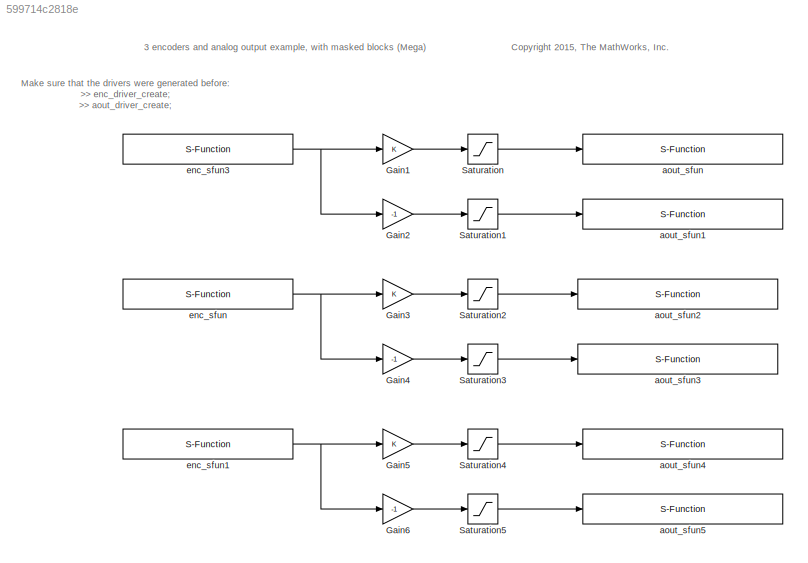
MODEL slx_599714c2818e
KIND model
BLOCK [Gain] Gain1
  ParamDataTypeStr = Inherit: Inherit via internal rule
  SaturateOnIntegerOverflow = off
BLOCK [Gain] Gain2
  Gain = -1
  ParamDataTypeStr = Inherit: Inherit via internal rule
  SaturateOnIntegerOverflow = off
BLOCK [Gain] Gain3
  ParamDataTypeStr = Inherit: Inherit via internal rule
  SaturateOnIntegerOverflow = off
BLOCK [Gain] Gain4
  Gain = -1
  ParamDataTypeStr = Inherit: Inherit via internal rule
  SaturateOnIntegerOverflow = off
BLOCK [Gain] Gain5
  ParamDataTypeStr = Inherit: Inherit via internal rule
  SaturateOnIntegerOverflow = off
BLOCK [Gain] Gain6
  Gain = -1
  ParamDataTypeStr = Inherit: Inherit via internal rule
  SaturateOnIntegerOverflow = off
BLOCK [Saturate] Saturation
  InputPortMap = u0
  LowerLimit = 0
  OutDataTypeStr = Inherit: Inherit via back propagation
  Ports = [1, 1]
  UpperLimit = 255
BLOCK [Saturate] Saturation1
  InputPortMap = u0
  LowerLimit = 0
  OutDataTypeStr = Inherit: Inherit via back propagation
  Ports = [1, 1]
  UpperLimit = 255
BLOCK [Saturate] Saturation2
  InputPortMap = u0
  LowerLimit = 0
  OutDataTypeStr = Inherit: Inherit via back propagation
  Ports = [1, 1]
  UpperLimit = 255
BLOCK [Saturate] Saturation3
  InputPortMap = u0
  LowerLimit = 0
  OutDataTypeStr = Inherit: Inherit via back propagation
  Ports = [1, 1]
  UpperLimit = 255
BLOCK [Saturate] Saturation4
  InputPortMap = u0
  LowerLimit = 0
  OutDataTypeStr = Inherit: Inherit via back propagation
  Ports = [1, 1]
  UpperLimit = 255
BLOCK [Saturate] Saturation5
  InputPortMap = u0
  LowerLimit = 0
  OutDataTypeStr = Inherit: Inherit via back propagation
  Ports = [1, 1]
  UpperLimit = 255
BLOCK [S-Function] aout_sfun
  FunctionName = aout_sfun
  Parameters = SParameter1
  Ports = [1]
BLOCK [S-Function] aout_sfun1
  FunctionName = aout_sfun
  Parameters = SParameter1
  Ports = [1]
BLOCK [S-Function] aout_sfun2
  FunctionName = aout_sfun
  Parameters = SParameter1
  Ports = [1]
BLOCK [S-Function] aout_sfun3
  FunctionName = aout_sfun
  Parameters = SParameter1
  Ports = [1]
BLOCK [S-Function] aout_sfun4
  FunctionName = aout_sfun
  Parameters = SParameter1
  Ports = [1]
BLOCK [S-Function] aout_sfun5
  FunctionName = aout_sfun
  Parameters = SParameter1
  Ports = [1]
BLOCK [S-Function] enc_sfun
  FunctionName = enc_sfun
  Parameters = SParameter1, SParameter2, SParameter3
  Ports = [0, 1]
BLOCK [S-Function] enc_sfun1
  FunctionName = enc_sfun
  Parameters = SParameter1, SParameter2, SParameter3
  Ports = [0, 1]
BLOCK [S-Function] enc_sfun3
  FunctionName = enc_sfun
  Parameters = SParameter1, SParameter2, SParameter3
  Ports = [0, 1]
ANNOTATION (root): 3 encoders and analog output example, with masked blocks (Mega)
ANNOTATION (root): <copyright redacted>
ANNOTATION (root): Make sure that the drivers were generated before: >> enc_driver_create; >> aout_driver_create;
LINE Gain1:1 -> Saturation:1
LINE Gain2:1 -> Saturation1:1
LINE Gain3:1 -> Saturation2:1
LINE Gain4:1 -> Saturation3:1
LINE Gain5:1 -> Saturation4:1
LINE Gain6:1 -> Saturation5:1
LINE Saturation1:1 -> aout_sfun1:1
LINE Saturation2:1 -> aout_sfun2:1
LINE Saturation3:1 -> aout_sfun3:1
LINE Saturation4:1 -> aout_sfun4:1
LINE Saturation5:1 -> aout_sfun5:1
LINE Saturation:1 -> aout_sfun:1
NET enc_sfun1:1 -> Gain5:1, Gain6:1
NET enc_sfun3:1 -> Gain1:1, Gain2:1
NET enc_sfun:1 -> Gain3:1, Gain4:1
note: NET lines group one-source signal fan-out (src -> all destinations, sorted); 1:1 wires keep LINE
